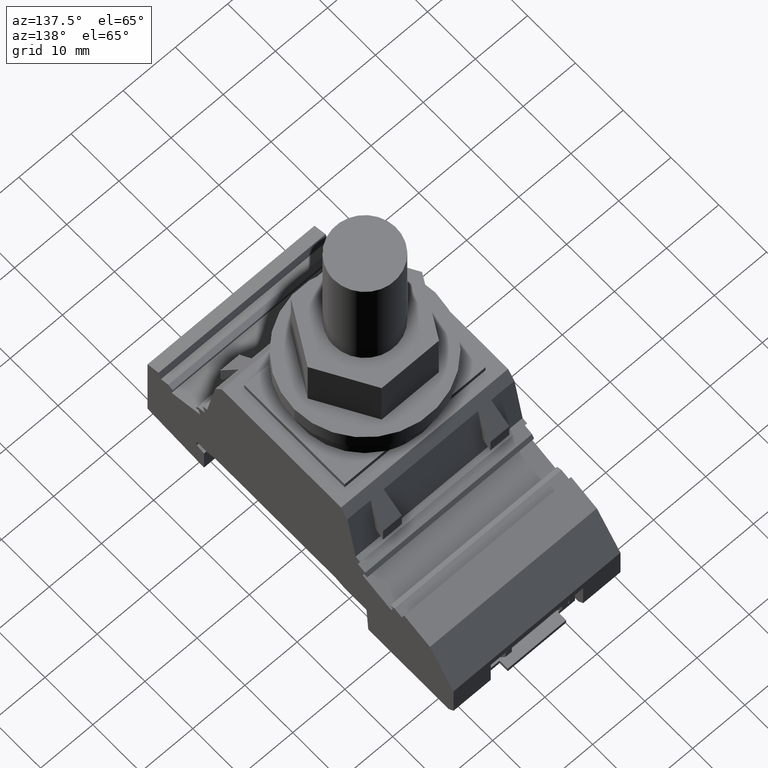
[diagram: clean part render]
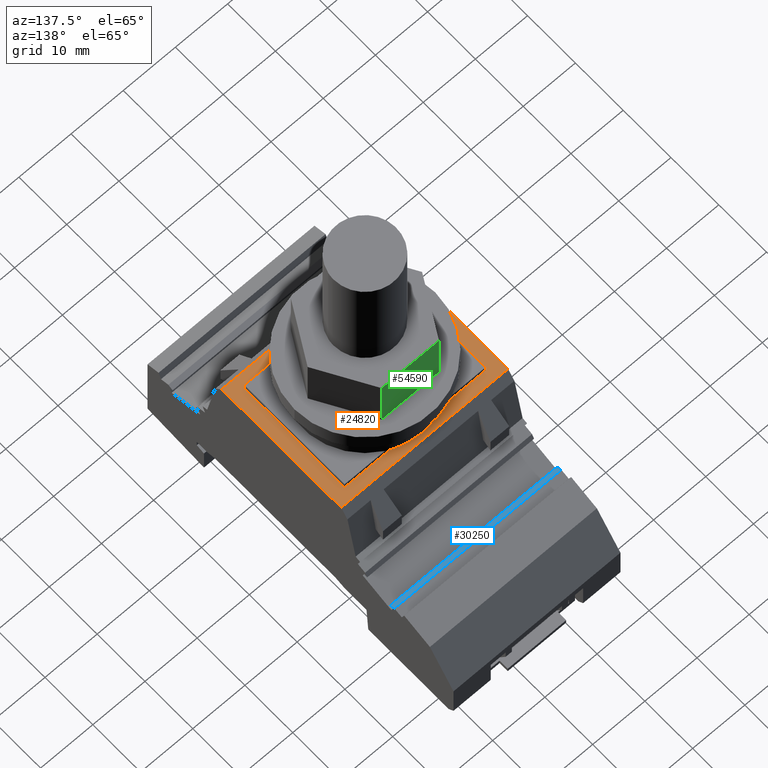
[diagram: same view with three faces highlighted in distinct colors, each labeled with its STEP entity id]
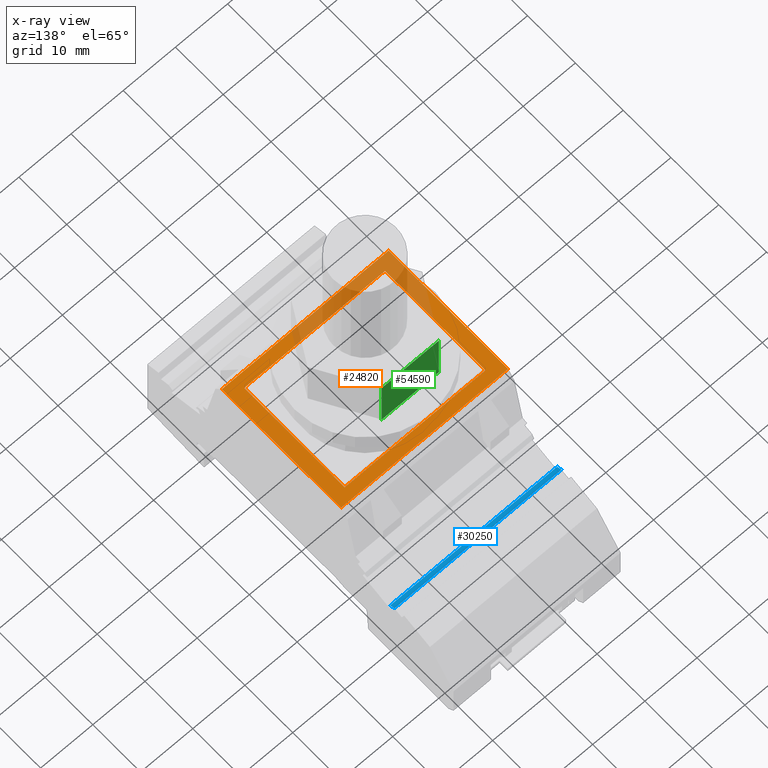
[diagram: x-ray of the same camera — body ghosted, the three highlighted faces saturated]
A machine part, auxiliary view with three faces highlighted in distinct colors.
The next image is the same camera in x-ray (body ghosted, the three faces saturated) — at least one of them is partly hidden behind the body in this view.
Their STEP definitions:

[orange] entity #24820 — the highlighted planar face has unit normal (-0, 0, -1).
#1320=CARTESIAN_POINT('',(2.19699813897023E-11,40.5000000629505,
32.5999999998994));
#1330=VERTEX_POINT('',#1320);
#1360=CARTESIAN_POINT('',(2.19699813897023E-11,-25.0169236945183,
32.5999999998994));
#1370=DIRECTION('',(-4.68674043847409E-17,1.,5.68989301325057E-16));
#1380=VECTOR('',#1370,1.);
#1390=LINE('',#1360,#1380);
#1400=CARTESIAN_POINT('',(2.19699813897023E-11,15.5000000629505,
32.5999999998994));
#1410=VERTEX_POINT('',#1400);
#1420=EDGE_CURVE('',#1410,#1330,#1390,.T.);
#6190=CARTESIAN_POINT('',(32.0000000000361,15.5000000629505,
32.5999999998706));
#6200=VERTEX_POINT('',#6190);
#6230=CARTESIAN_POINT('',(32.0000000000361,-25.0169236945612,
32.5999999998706));
#6240=DIRECTION('',(4.68674043847409E-17,-1.,-5.68989301325044E-16));
#6250=VECTOR('',#6240,1.);
#6260=LINE('',#6230,#6250);
#6270=CARTESIAN_POINT('',(32.0000000000361,40.5000000629505,
32.5999999998706));
#6280=VERTEX_POINT('',#6270);
#6290=EDGE_CURVE('',#6280,#6200,#6260,.T.);
#23580=CARTESIAN_POINT('',(-89.7753396328138,15.5000000629505,
32.5999999999801));
#23590=DIRECTION('',(1.,4.68674043851448E-17,-8.99463983744699E-13));
#23600=VECTOR('',#23590,1.);
#23610=LINE('',#23580,#23600);
#23620=EDGE_CURVE('',#1410,#6200,#23610,.T.);
#24320=CARTESIAN_POINT('',(2.19699813897023E-11,40.5000000629505,
32.5999999998994));
#24330=DIRECTION('',(-8.99463983744699E-13,5.68989301325015E-16,-1.));
#24340=DIRECTION('',(-4.68674043847409E-17,1.,5.68989301325057E-16));
#24350=AXIS2_PLACEMENT_3D('',#24320,#24330,#24340);
#24360=PLANE('',#24350);
#24370=CARTESIAN_POINT('',(-89.775339632783,38.5000000621905,
32.5999999999801));
#24380=DIRECTION('',(1.,6.7302465982577E-12,-8.99463983744695E-13));
#24390=VECTOR('',#24380,1.);
#24400=LINE('',#24370,#24390);
#24410=CARTESIAN_POINT('',(2.49999999995477,38.5000000628115,
32.5999999998972));
#24420=VERTEX_POINT('',#24410);
#24430=CARTESIAN_POINT('',(29.4999999999548,38.5000000629932,
32.5999999998729));
#24440=VERTEX_POINT('',#24430);
#24450=EDGE_CURVE('',#24420,#24440,#24400,.T.);
#24460=ORIENTED_EDGE('',*,*,#24450,.T.);
#24470=CARTESIAN_POINT('',(2.50000000038224,-25.0169236945217,
32.5999999998971));
#24480=DIRECTION('',(-6.73016333153085E-12,1.,5.68989307379091E-16));
#24490=VECTOR('',#24480,1.);
#24500=LINE('',#24470,#24490);
#24510=CARTESIAN_POINT('',(2.50000000009611,17.5000000628115,
32.5999999998971));
#24520=VERTEX_POINT('',#24510);
#24530=EDGE_CURVE('',#24520,#24420,#24500,.T.);
#24540=ORIENTED_EDGE('',*,*,#24530,.T.);
#24550=CARTESIAN_POINT('',(-89.7753396328112,17.5000000621904,
32.5999999999801));
#24560=DIRECTION('',(-1.,-6.7302465982577E-12,8.99463983744695E-13));
#24570=VECTOR('',#24560,1.);
#24580=LINE('',#24550,#24570);
#24590=CARTESIAN_POINT('',(29.5000000000962,17.5000000629932,
32.5999999998729));
#24600=VERTEX_POINT('',#24590);
#24610=EDGE_CURVE('',#24600,#24520,#24580,.T.);
#24620=ORIENTED_EDGE('',*,*,#24610,.T.);
#24630=CARTESIAN_POINT('',(29.5000000003823,-25.0169236945578,
32.5999999998728));
#24640=DIRECTION('',(6.73016333153085E-12,-1.,-5.68989307379091E-16));
#24650=VECTOR('',#24640,1.);
#24660=LINE('',#24630,#24650);
#24670=EDGE_CURVE('',#24440,#24600,#24660,.T.);
#24680=ORIENTED_EDGE('',*,*,#24670,.T.);
#24690=EDGE_LOOP('',(#24680,#24620,#24540,#24460));
#24700=FACE_BOUND('',#24690,.T.);
#24710=ORIENTED_EDGE('',*,*,#1420,.F.);
#24720=CARTESIAN_POINT('',(-89.7753396327803,40.5000000629505,
32.5999999999801));
#24730=DIRECTION('',(1.,4.68674043851448E-17,-8.99463983744699E-13));
#24740=VECTOR('',#24730,1.);
#24750=LINE('',#24720,#24740);
#24760=EDGE_CURVE('',#1330,#6280,#24750,.T.);
#24770=ORIENTED_EDGE('',*,*,#24760,.F.);
#24780=ORIENTED_EDGE('',*,*,#6290,.F.);
#24790=ORIENTED_EDGE('',*,*,#23620,.T.);
#24800=EDGE_LOOP('',(#24790,#24780,#24770,#24710));
#24810=FACE_OUTER_BOUND('',#24800,.T.);
#24820=ADVANCED_FACE('',(#24700,#24810),#24360,.F.);

[blue] entity #30250 — the highlighted planar face has unit normal (-0, 0.4226, -0.9063).
#360=CARTESIAN_POINT('',(7.48912043491146E-12,51.6512385406434,
16.4986608581687));
#370=VERTEX_POINT('',#360);
#400=CARTESIAN_POINT('',(-5.698552740796E-12,20.2309162257649,
1.84712394130855));
#410=DIRECTION('',(3.80087429009327E-13,0.906307787039589,
0.422618261734396));
#420=VECTOR('',#410,1.);
#430=LINE('',#400,#420);
#440=CARTESIAN_POINT('',(7.105427357601E-12,50.7540396057749,
16.0802901239586));
#450=VERTEX_POINT('',#440);
#460=EDGE_CURVE('',#450,#370,#430,.T.);
#7150=CARTESIAN_POINT('',(32.0000000000212,50.7540396057749,
16.0802901239299));
#7160=VERTEX_POINT('',#7150);
#7190=CARTESIAN_POINT('',(31.9999999999895,-25.0169236945612,
-19.2522903281566));
#7200=DIRECTION('',(-3.79861667908692E-13,-0.906307787039589,
-0.422618261734396));
#7210=VECTOR('',#7200,1.);
#7220=LINE('',#7190,#7210);
#7230=CARTESIAN_POINT('',(32.0000000000216,51.6512385406434,
16.4986608581399));
#7240=VERTEX_POINT('',#7230);
#7250=EDGE_CURVE('',#7240,#7160,#7220,.T.);
#29910=CARTESIAN_POINT('',(-89.7753396327678,50.7540396057749,
16.0802901240394));
#29920=DIRECTION('',(1.,4.68674043849429E-17,-8.99463983744699E-13));
#29930=VECTOR('',#29920,1.);
#29940=LINE('',#29910,#29930);
#29950=EDGE_CURVE('',#450,#7160,#29940,.T.);
#30090=CARTESIAN_POINT('',(7.48912043491146E-12,51.6512385406434,
16.4986608581687));
#30100=DIRECTION('',(-8.15211019650445E-13,0.422618261734396,
-0.906307787039589));
#30110=DIRECTION('',(3.80087429009327E-13,0.906307787039589,
0.422618261734396));
#30120=AXIS2_PLACEMENT_3D('',#30090,#30100,#30110);
#30130=PLANE('',#30120);
#30140=ORIENTED_EDGE('',*,*,#460,.F.);
#30150=CARTESIAN_POINT('',(-89.7753396327665,51.6512385406434,
16.4986608582495));
#30160=DIRECTION('',(1.,4.68674043851448E-17,-8.99463983744699E-13));
#30170=VECTOR('',#30160,1.);
#30180=LINE('',#30150,#30170);
#30190=EDGE_CURVE('',#370,#7240,#30180,.T.);
#30200=ORIENTED_EDGE('',*,*,#30190,.F.);
#30210=ORIENTED_EDGE('',*,*,#7250,.F.);
#30220=ORIENTED_EDGE('',*,*,#29950,.T.);
#30230=EDGE_LOOP('',(#30220,#30210,#30200,#30140));
#30240=FACE_OUTER_BOUND('',#30230,.T.);
#30250=ADVANCED_FACE('',(#30240),#30130,.F.);

[green] entity #54590 — the highlighted planar face has unit normal (0, 1, 0).
#48460=CARTESIAN_POINT('',(10.515172442749,37.5000000629004,
46.3249995512545));
#48470=DIRECTION('',(8.98326009221167E-13,-9.0493081334717E-24,1.));
#48480=VECTOR('',#48470,1.);
#48490=LINE('',#48460,#48480);
#48500=CARTESIAN_POINT('',(10.5151724427452,37.5000000629004,
42.0499995512545));
#48510=VERTEX_POINT('',#48500);
#48520=CARTESIAN_POINT('',(10.5151724427546,37.5000000629004,
52.5499995512545));
#48530=VERTEX_POINT('',#48520);
#48540=EDGE_CURVE('',#48510,#48530,#48490,.T.);
#52570=CARTESIAN_POINT('',(21.4848275573481,37.5000000628857,
42.0499995512446));
#52580=VERTEX_POINT('',#52570);
#52610=CARTESIAN_POINT('',(-89.7753396327837,37.5000000630347,
42.0499995513446));
#52620=DIRECTION('',(-1.,1.33946823729005E-12,8.98326009221167E-13));
#52630=VECTOR('',#52620,1.);
#52640=LINE('',#52610,#52630);
#52650=EDGE_CURVE('',#52580,#48510,#52640,.T.);
#53610=CARTESIAN_POINT('',(16.0000000000561,37.5000000628931,
52.5499995512496));
#53620=DIRECTION('',(1.,-1.33946823729005E-12,-8.98326009221167E-13));
#53630=VECTOR('',#53620,1.);
#53640=LINE('',#53610,#53630);
#53650=CARTESIAN_POINT('',(21.4848275573575,37.5000000628857,
52.5499995512446));
#53660=VERTEX_POINT('',#53650);
#53670=EDGE_CURVE('',#48530,#53660,#53640,.T.);
#54310=CARTESIAN_POINT('',(21.4848275573519,37.5000000628857,
46.3249995512446));
#54320=DIRECTION('',(8.98326009221167E-13,-9.0493081334717E-24,1.));
#54330=VECTOR('',#54320,1.);
#54340=LINE('',#54310,#54330);
#54350=EDGE_CURVE('',#52580,#53660,#54340,.T.);
#54480=CARTESIAN_POINT('',(10.5151724427452,37.5000000629004,
42.0499995512545));
#54490=DIRECTION('',(1.33946823729005E-12,1.,7.84602897738842E-24));
#54500=DIRECTION('',(1.,-1.33946823729005E-12,-8.98326009221167E-13));
#54510=AXIS2_PLACEMENT_3D('',#54480,#54490,#54500);
#54520=PLANE('',#54510);
#54530=ORIENTED_EDGE('',*,*,#54350,.F.);
#54540=ORIENTED_EDGE('',*,*,#53670,.T.);
#54550=ORIENTED_EDGE('',*,*,#48540,.T.);
#54560=ORIENTED_EDGE('',*,*,#52650,.T.);
#54570=EDGE_LOOP('',(#54560,#54550,#54540,#54530));
#54580=FACE_OUTER_BOUND('',#54570,.T.);
#54590=ADVANCED_FACE('',(#54580),#54520,.T.);